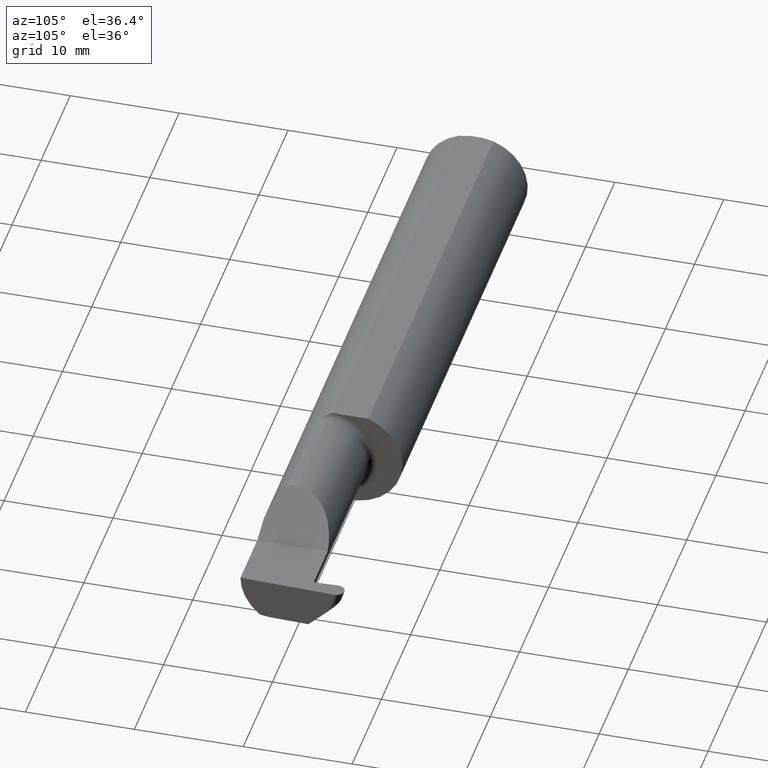
[diagram: clean part render]
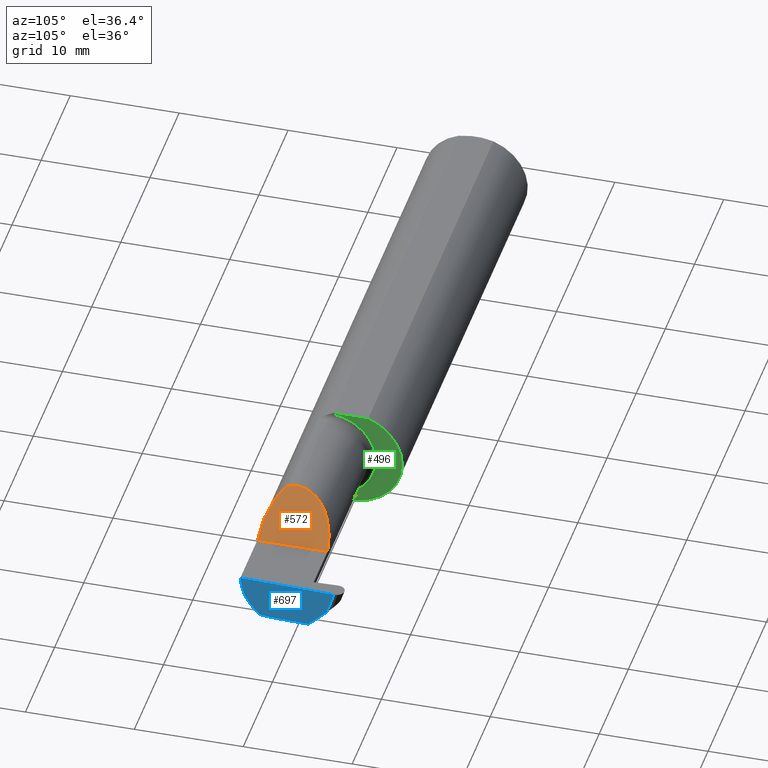
[diagram: same view with three faces highlighted in distinct colors, each labeled with its STEP entity id]
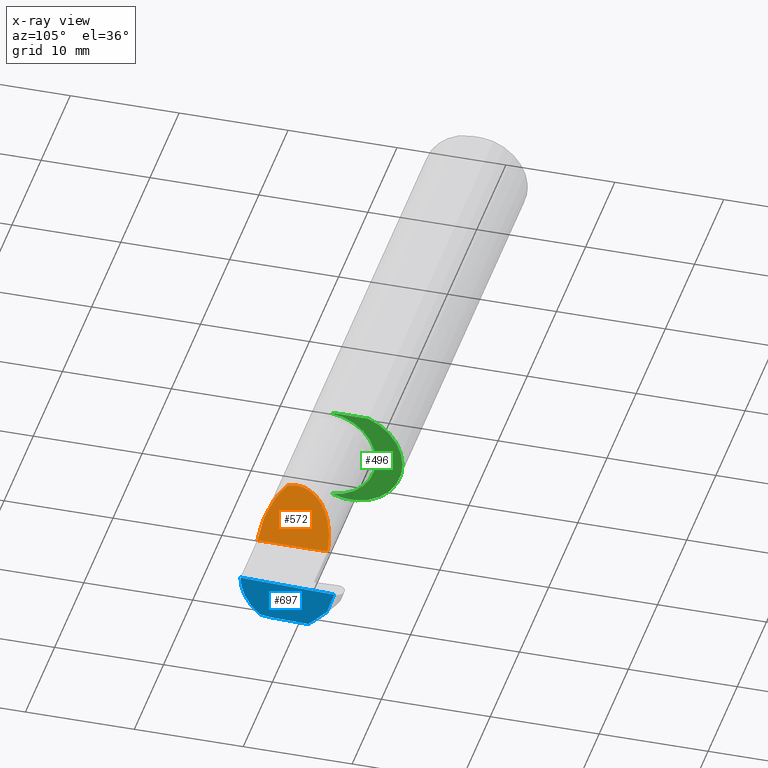
[diagram: x-ray of the same camera — body ghosted, the three highlighted faces saturated]
A machine part, auxiliary view with three faces highlighted in distinct colors.
The next image is the same camera in x-ray (body ghosted, the three faces saturated) — at least one of them is partly hidden behind the body in this view.
Their STEP definitions:

[orange] entity #572 — the highlighted planar face has unit normal (-0.7071, 0, -0.7071).
#35 = ORIENTED_EDGE ( 'NONE', *, *, #634, .F. ) ;
#36 = CARTESIAN_POINT ( 'NONE',  ( 2.260000000000000231, -0.2500000000000000555, 2.939152317953647352E-17 ) ) ;
#78 = CARTESIAN_POINT ( 'NONE',  ( 2.260000000000000231, -0.1873499999999999888, 2.939152317953647352E-17 ) ) ;
#93 =( BOUNDED_CURVE ( )  B_SPLINE_CURVE ( 3, ( #417, #352, #94, #540 ),
 .UNSPECIFIED., .F., .T. ) 
 B_SPLINE_CURVE_WITH_KNOTS ( ( 4, 4 ),
 ( 4.712388980384688786, 5.606916381293135743 ),
 .UNSPECIFIED. ) 
 CURVE ( )  GEOMETRIC_REPRESENTATION_ITEM ( )  RATIONAL_B_SPLINE_CURVE ( ( 1.000000000000000000, 0.9344226172588803170, 0.9344226172588803170, 1.000000000000000000 ) ) 
 REPRESENTATION_ITEM ( '' )  );
#94 = CARTESIAN_POINT ( 'NONE',  ( 2.150065971957465294, -0.1623470442677542591, 0.1099340280425336325 ) ) ;
#114 = CARTESIAN_POINT ( 'NONE',  ( 2.109999999999998987, -0.08334999999999999354, 0.1499999999999999944 ) ) ;
#148 = PLANE ( 'NONE',  #249 ) ;
#176 = LINE ( 'NONE', #373, #598 ) ;
#249 = AXIS2_PLACEMENT_3D ( 'NONE', #36, #481, #278 ) ;
#273 =( BOUNDED_CURVE ( )  B_SPLINE_CURVE ( 3, ( #301, #360, #679, #114 ),
 .UNSPECIFIED., .F., .F. ) 
 B_SPLINE_CURVE_WITH_KNOTS ( ( 4, 4 ),
 ( 6.055147272130141367, 6.283185307179586232 ),
 .UNSPECIFIED. ) 
 CURVE ( )  GEOMETRIC_REPRESENTATION_ITEM ( )  RATIONAL_B_SPLINE_CURVE ( ( 1.000000000000000000, 0.9956712472009929815, 0.9956712472009929815, 1.000000000000000000 ) ) 
 REPRESENTATION_ITEM ( '' )  );
#278 = DIRECTION ( 'NONE',  ( -0.7071067811865509034, 0.000000000000000000, 0.7071067811865440200 ) ) ;
#289 = CARTESIAN_POINT ( 'NONE',  ( 2.260000000000000231, 0.06664999999999998703, 9.797174393178831081E-17 ) ) ;
#301 = CARTESIAN_POINT ( 'NONE',  ( 2.113883229301068312, -0.1172600179964008171, 0.1461167706989301707 ) ) ;
#327 = VERTEX_POINT ( 'NONE', #735 ) ;
#345 =( BOUNDED_CURVE ( )  B_SPLINE_CURVE ( 3, ( #560, #502, #626, #289 ),
 .UNSPECIFIED., .F., .T. ) 
 B_SPLINE_CURVE_WITH_KNOTS ( ( 4, 4 ),
 ( 0.000000000000000000, 1.570796326794896336 ),
 .UNSPECIFIED. ) 
 CURVE ( )  GEOMETRIC_REPRESENTATION_ITEM ( )  RATIONAL_B_SPLINE_CURVE ( ( 1.000000000000000000, 0.8047378541243650485, 0.8047378541243650485, 1.000000000000000000 ) ) 
 REPRESENTATION_ITEM ( '' )  );
#352 = CARTESIAN_POINT ( 'NONE',  ( 2.202189699843948745, -0.1873500000000000443, 0.05781030015605096578 ) ) ;
#360 = CARTESIAN_POINT ( 'NONE',  ( 2.111300037307153765, -0.1061291577212410409, 0.1486999626928446061 ) ) ;
#373 = CARTESIAN_POINT ( 'NONE',  ( 2.260000000000000231, -0.2500000000000000555, 2.939152317953647352E-17 ) ) ;
#376 = EDGE_CURVE ( 'NONE', #603, #327, #345, .T. ) ;
#417 = CARTESIAN_POINT ( 'NONE',  ( 2.260000000000000231, -0.1873499999999999888, 2.939152317953647352E-17 ) ) ;
#481 = DIRECTION ( 'NONE',  ( -0.7071067811865441310, 0.000000000000000000, -0.7071067811865510144 ) ) ;
#500 = ORIENTED_EDGE ( 'NONE', *, *, #811, .T. ) ;
#502 = CARTESIAN_POINT ( 'NONE',  ( 2.109999999999998543, 0.004517965644035734120, 0.1499999999999999667 ) ) ;
#532 = CARTESIAN_POINT ( 'NONE',  ( 2.113883229301068312, -0.1172600179964008171, 0.1461167706989301707 ) ) ;
#540 = CARTESIAN_POINT ( 'NONE',  ( 2.113883229301068312, -0.1172600179964008171, 0.1461167706989301707 ) ) ;
#544 = ORIENTED_EDGE ( 'NONE', *, *, #376, .F. ) ;
#560 = CARTESIAN_POINT ( 'NONE',  ( 2.109999999999998987, -0.08334999999999999354, 0.1499999999999999944 ) ) ;
#567 = DIRECTION ( 'NONE',  ( -0.000000000000000000, 1.000000000000000000, -0.000000000000000000 ) ) ;
#570 = VERTEX_POINT ( 'NONE', #78 ) ;
#572 = ADVANCED_FACE ( 'NONE', ( #715 ), #148, .F. ) ;
#596 = ORIENTED_EDGE ( 'NONE', *, *, #792, .F. ) ;
#598 = VECTOR ( 'NONE', #567, 39.37007874015748143 ) ;
#603 = VERTEX_POINT ( 'NONE', #777 ) ;
#626 = CARTESIAN_POINT ( 'NONE',  ( 2.172132034355963359, 0.06664999999999998703, 0.08786796564403573373 ) ) ;
#634 = EDGE_CURVE ( 'NONE', #570, #721, #93, .T. ) ;
#679 = CARTESIAN_POINT ( 'NONE',  ( 2.109999999999998543, -0.09477667630339427218, 0.1499999999999999667 ) ) ;
#714 = EDGE_LOOP ( 'NONE', ( #596, #35, #500, #544 ) ) ;
#715 = FACE_OUTER_BOUND ( 'NONE', #714, .T. ) ;
#721 = VERTEX_POINT ( 'NONE', #532 ) ;
#735 = CARTESIAN_POINT ( 'NONE',  ( 2.260000000000000231, 0.06664999999999998703, 9.797174393178831081E-17 ) ) ;
#777 = CARTESIAN_POINT ( 'NONE',  ( 2.109999999999998987, -0.08334999999999999354, 0.1499999999999999944 ) ) ;
#792 = EDGE_CURVE ( 'NONE', #721, #603, #273, .T. ) ;
#811 = EDGE_CURVE ( 'NONE', #570, #327, #176, .T. ) ;

[blue] entity #697 — the highlighted planar face has unit normal (-0.9992, 0.0349, 0.0175).
#11 = CARTESIAN_POINT ( 'NONE',  ( 2.488006099050898090, -0.1873499999999999888, 0.000000000000000000 ) ) ;
#15 = PLANE ( 'NONE',  #194 ) ;
#34 = CARTESIAN_POINT ( 'NONE',  ( 2.488618975064261996, -0.09477667630339429994, -0.1499999999999999944 ) ) ;
#43 = LINE ( 'NONE', #233, #737 ) ;
#52 = DIRECTION ( 'NONE',  ( 0.02739170151060046562, 0.3089010440752013031, 0.9506996579664918068 ) ) ;
#58 = ORIENTED_EDGE ( 'NONE', *, *, #351, .F. ) ;
#82 = VECTOR ( 'NONE', #772, 39.37007874015748143 ) ;
#89 = LINE ( 'NONE', #778, #798 ) ;
#134 = VERTEX_POINT ( 'NONE', #763 ) ;
#145 = DIRECTION ( 'NONE',  ( -0.9992386149554828290, 0.03489418134010779937, 0.01745240643728358798 ) ) ;
#157 = EDGE_CURVE ( 'NONE', #248, #613, #656, .T. ) ;
#165 = EDGE_CURVE ( 'NONE', #308, #495, #89, .T. ) ;
#170 = VERTEX_POINT ( 'NONE', #729 ) ;
#191 =( BOUNDED_CURVE ( )  B_SPLINE_CURVE ( 3, ( #236, #550, #680, #374 ),
 .UNSPECIFIED., .F., .T. ) 
 B_SPLINE_CURVE_WITH_KNOTS ( ( 4, 4 ),
 ( 5.852427379562165299, 6.746954780470612256 ),
 .UNSPECIFIED. ) 
 CURVE ( )  GEOMETRIC_REPRESENTATION_ITEM ( )  RATIONAL_B_SPLINE_CURVE ( ( 1.000000000000000000, 0.9344226172588803170, 0.9344226172588803170, 1.000000000000000000 ) ) 
 REPRESENTATION_ITEM ( '' )  );
#194 = AXIS2_PLACEMENT_3D ( 'NONE', #530, #145, #771 ) ;
#198 = EDGE_CURVE ( 'NONE', #170, #134, #794, .T. ) ;
#208 = CARTESIAN_POINT ( 'NONE',  ( 2.496474746315712867, 0.1068850723125632091, -0.1034179792305871259 ) ) ;
#233 = CARTESIAN_POINT ( 'NONE',  ( 2.499950392650356346, 0.1545085540790380740, 0.0003624150208497705782 ) ) ;
#236 = CARTESIAN_POINT ( 'NONE',  ( 2.487901662807321390, -0.1172600179964006784, -0.1461167706989303650 ) ) ;
#248 = VERTEX_POINT ( 'NONE', #268 ) ;
#268 = CARTESIAN_POINT ( 'NONE',  ( 2.497553638666706544, 0.1274799371216591704, -0.08282311442149091485 ) ) ;
#271 = CARTESIAN_POINT ( 'NONE',  ( 2.488245243745037527, -0.1061291577212409715, -0.1486999626928446339 ) ) ;
#308 = VERTEX_POINT ( 'NONE', #356 ) ;
#335 = CARTESIAN_POINT ( 'NONE',  ( 2.487901662807321390, -0.1172600179964006784, -0.1461167706989303650 ) ) ;
#340 = DIRECTION ( 'NONE',  ( -0.03489949670249509889, -0.9993908270190959842, 0.000000000000000000 ) ) ;
#351 = EDGE_CURVE ( 'NONE', #170, #495, #191, .T. ) ;
#356 = CARTESIAN_POINT ( 'NONE',  ( 2.499939950694276103, 0.1543907983005533280, 0.000000000000000000 ) ) ;
#371 = EDGE_CURVE ( 'NONE', #248, #308, #43, .T. ) ;
#374 = CARTESIAN_POINT ( 'NONE',  ( 2.488006099050898090, -0.1873499999999999888, 0.000000000000000000 ) ) ;
#401 = CARTESIAN_POINT ( 'NONE',  ( 2.489315391880043915, -0.07483390797619585144, -0.1500000000000000500 ) ) ;
#413 = LINE ( 'NONE', #401, #799 ) ;
#440 = EDGE_LOOP ( 'NONE', ( #514, #810, #770, #58, #616, #628 ) ) ;
#495 = VERTEX_POINT ( 'NONE', #11 ) ;
#514 = ORIENTED_EDGE ( 'NONE', *, *, #157, .F. ) ;
#530 = CARTESIAN_POINT ( 'NONE',  ( 2.499982912697886750, 0.1556210691174950700, 0.000000000000000000 ) ) ;
#550 = CARTESIAN_POINT ( 'NONE',  ( 2.486959146249366537, -0.1623470442677541481, -0.1099340280425338268 ) ) ;
#584 = FACE_OUTER_BOUND ( 'NONE', #440, .T. ) ;
#597 = EDGE_CURVE ( 'NONE', #613, #134, #413, .T. ) ;
#613 = VERTEX_POINT ( 'NONE', #659 ) ;
#616 = ORIENTED_EDGE ( 'NONE', *, *, #198, .T. ) ;
#628 = ORIENTED_EDGE ( 'NONE', *, *, #597, .F. ) ;
#656 = LINE ( 'NONE', #208, #82 ) ;
#659 = CARTESIAN_POINT ( 'NONE',  ( 2.494034478493234452, 0.06030305154315081240, -0.1500000000000000500 ) ) ;
#680 = CARTESIAN_POINT ( 'NONE',  ( 2.486996401427643555, -0.1873499999999999888, -0.05781030015605118089 ) ) ;
#697 = ADVANCED_FACE ( 'NONE', ( #584 ), #15, .F. ) ;
#720 = CARTESIAN_POINT ( 'NONE',  ( 2.489018003393509648, -0.08335000000000014619, -0.1500000000000000500 ) ) ;
#729 = CARTESIAN_POINT ( 'NONE',  ( 2.487901662807321390, -0.1172600179964006784, -0.1461167706989303650 ) ) ;
#737 = VECTOR ( 'NONE', #52, 39.37007874015748854 ) ;
#763 = CARTESIAN_POINT ( 'NONE',  ( 2.489018003393509648, -0.08335000000000014619, -0.1500000000000000500 ) ) ;
#770 = ORIENTED_EDGE ( 'NONE', *, *, #165, .T. ) ;
#771 = DIRECTION ( 'NONE',  ( -0.03489949670249509889, -0.9993908270190959842, 0.000000000000000000 ) ) ;
#772 = DIRECTION ( 'NONE',  ( -0.03701744261649878714, -0.7066221440565398915, -0.7066221440565479961 ) ) ;
#778 = CARTESIAN_POINT ( 'NONE',  ( 2.499982912697886750, 0.1556210691174950700, 0.000000000000000000 ) ) ;
#788 = DIRECTION ( 'NONE',  ( -0.03489949670249509889, -0.9993908270190959842, 0.000000000000000000 ) ) ;
#794 =( BOUNDED_CURVE ( )  B_SPLINE_CURVE ( 3, ( #335, #271, #34, #720 ),
 .UNSPECIFIED., .F., .T. ) 
 B_SPLINE_CURVE_WITH_KNOTS ( ( 4, 4 ),
 ( 0.8789888184544266680, 1.107026853503869868 ),
 .UNSPECIFIED. ) 
 CURVE ( )  GEOMETRIC_REPRESENTATION_ITEM ( )  RATIONAL_B_SPLINE_CURVE ( ( 1.000000000000000000, 0.9956712472009929815, 0.9956712472009929815, 1.000000000000000000 ) ) 
 REPRESENTATION_ITEM ( '' )  );
#798 = VECTOR ( 'NONE', #340, 39.37007874015748854 ) ;
#799 = VECTOR ( 'NONE', #788, 39.37007874015748143 ) ;
#810 = ORIENTED_EDGE ( 'NONE', *, *, #371, .T. ) ;

[green] entity #496 — the highlighted planar face has unit normal (1, 0, 0).
#2 = VERTEX_POINT ( 'NONE', #398 ) ;
#3 = DIRECTION ( 'NONE',  ( 1.000000000000000000, 0.000000000000000000, 0.000000000000000000 ) ) ;
#9 = DIRECTION ( 'NONE',  ( 0.000000000000000000, 1.000000000000000000, 0.000000000000000000 ) ) ;
#23 = CIRCLE ( 'NONE', #636, 0.1873499999999999888 ) ;
#57 = CARTESIAN_POINT ( 'NONE',  ( 1.699999999999999956, 0.000000000000000000, 0.000000000000000000 ) ) ;
#72 = FACE_OUTER_BOUND ( 'NONE', #624, .T. ) ;
#128 = AXIS2_PLACEMENT_3D ( 'NONE', #557, #801, #177 ) ;
#133 = EDGE_CURVE ( 'NONE', #704, #386, #322, .T. ) ;
#173 = CARTESIAN_POINT ( 'NONE',  ( 1.699999999999999956, 0.06325108694718235836, 0.1763499999999999235 ) ) ;
#177 = DIRECTION ( 'NONE',  ( 0.000000000000000000, 0.000000000000000000, -1.000000000000000000 ) ) ;
#265 = ORIENTED_EDGE ( 'NONE', *, *, #382, .T. ) ;
#267 = CARTESIAN_POINT ( 'NONE',  ( 1.699999999999999956, -0.06325108694718287183, 0.1763499999999999235 ) ) ;
#292 = DIRECTION ( 'NONE',  ( -1.000000000000000000, -0.000000000000000000, -0.000000000000000000 ) ) ;
#302 = DIRECTION ( 'NONE',  ( 0.000000000000000000, 0.000000000000000000, -1.000000000000000000 ) ) ;
#322 = LINE ( 'NONE', #579, #331 ) ;
#331 = VECTOR ( 'NONE', #9, 39.37007874015748143 ) ;
#344 = VERTEX_POINT ( 'NONE', #494 ) ;
#347 = AXIS2_PLACEMENT_3D ( 'NONE', #492, #292, #617 ) ;
#368 = EDGE_CURVE ( 'NONE', #344, #386, #803, .T. ) ;
#382 = EDGE_CURVE ( 'NONE', #704, #2, #23, .T. ) ;
#386 = VERTEX_POINT ( 'NONE', #173 ) ;
#398 = CARTESIAN_POINT ( 'NONE',  ( 1.699999999999999956, -0.06851976604679071992, 0.1743704796142198366 ) ) ;
#418 = CIRCLE ( 'NONE', #347, 0.1749999999999999334 ) ;
#446 = DIRECTION ( 'NONE',  ( 0.000000000000000000, 0.000000000000000000, -1.000000000000000000 ) ) ;
#492 = CARTESIAN_POINT ( 'NONE',  ( 1.699999999999999956, -0.08334999999999999354, 0.000000000000000000 ) ) ;
#494 = CARTESIAN_POINT ( 'NONE',  ( 1.699999999999999956, -0.06851976604679071992, -0.1743704796142198366 ) ) ;
#496 = ADVANCED_FACE ( 'NONE', ( #72 ), #525, .T. ) ;
#525 = PLANE ( 'NONE',  #732 ) ;
#557 = CARTESIAN_POINT ( 'NONE',  ( 1.699999999999999956, 0.000000000000000000, 0.000000000000000000 ) ) ;
#579 = CARTESIAN_POINT ( 'NONE',  ( 1.699999999999999956, 0.1873499999999998500, 0.1763499999999999235 ) ) ;
#617 = DIRECTION ( 'NONE',  ( 0.000000000000000000, 0.000000000000000000, 1.000000000000000000 ) ) ;
#624 = EDGE_LOOP ( 'NONE', ( #653, #813, #265, #648 ) ) ;
#636 = AXIS2_PLACEMENT_3D ( 'NONE', #57, #743, #302 ) ;
#638 = CARTESIAN_POINT ( 'NONE',  ( 1.699999999999999956, 0.1873499999999999055, 0.000000000000000000 ) ) ;
#648 = ORIENTED_EDGE ( 'NONE', *, *, #765, .T. ) ;
#653 = ORIENTED_EDGE ( 'NONE', *, *, #368, .T. ) ;
#704 = VERTEX_POINT ( 'NONE', #267 ) ;
#732 = AXIS2_PLACEMENT_3D ( 'NONE', #638, #3, #446 ) ;
#743 = DIRECTION ( 'NONE',  ( 1.000000000000000000, 0.000000000000000000, 0.000000000000000000 ) ) ;
#765 = EDGE_CURVE ( 'NONE', #2, #344, #418, .T. ) ;
#801 = DIRECTION ( 'NONE',  ( 1.000000000000000000, 0.000000000000000000, 0.000000000000000000 ) ) ;
#803 = CIRCLE ( 'NONE', #128, 0.1873499999999999888 ) ;
#813 = ORIENTED_EDGE ( 'NONE', *, *, #133, .F. ) ;